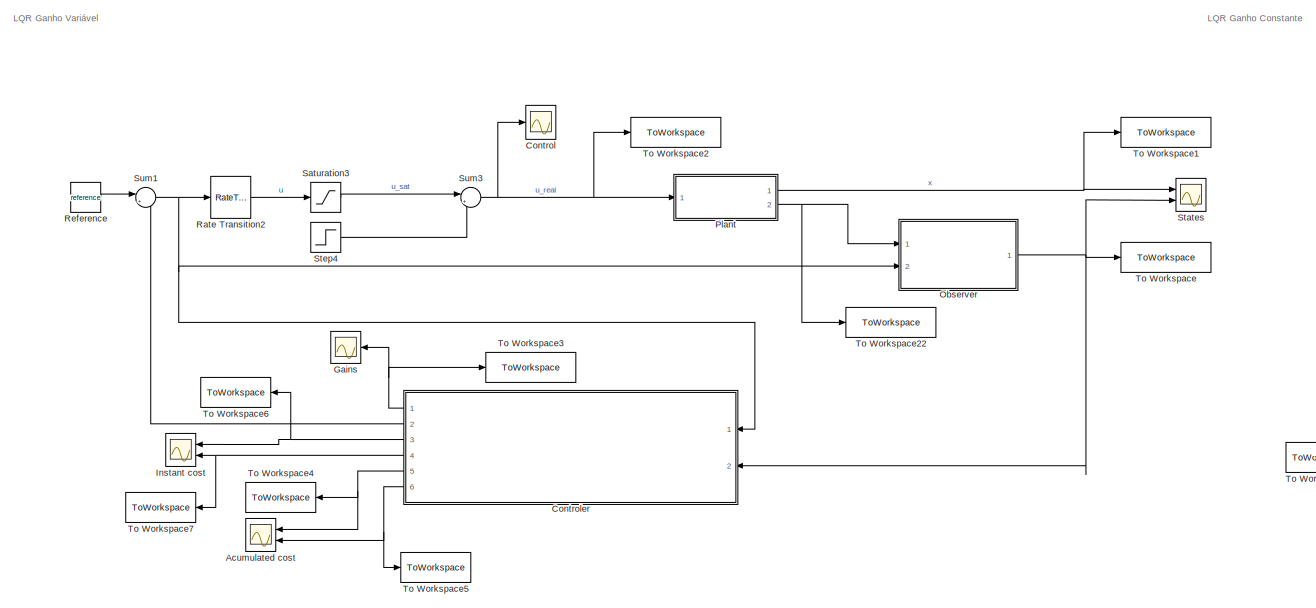
[diagram: root canvas - part 1/3, top left region]
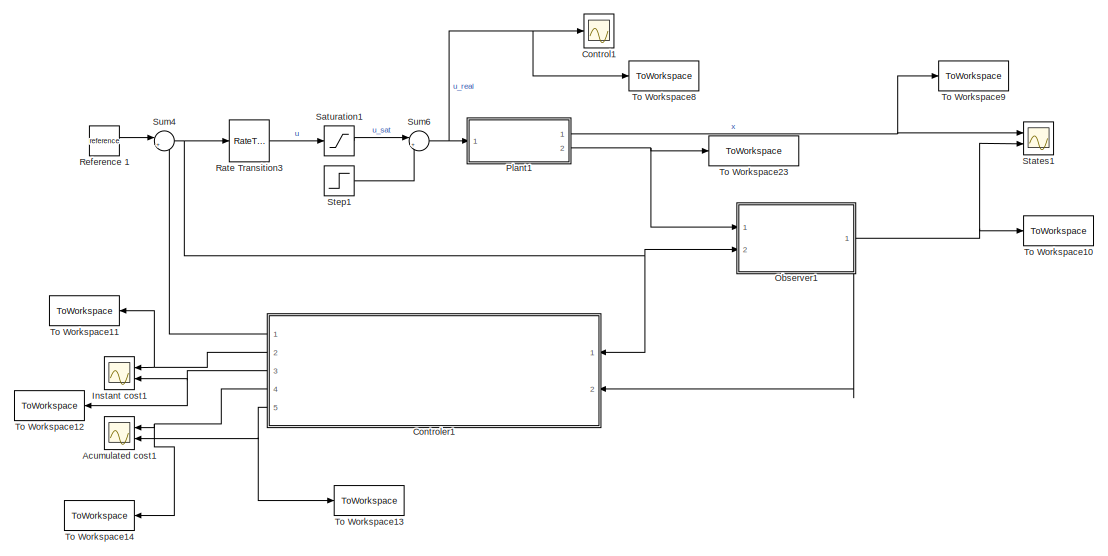
[diagram: root canvas - part 2/3, top right region]
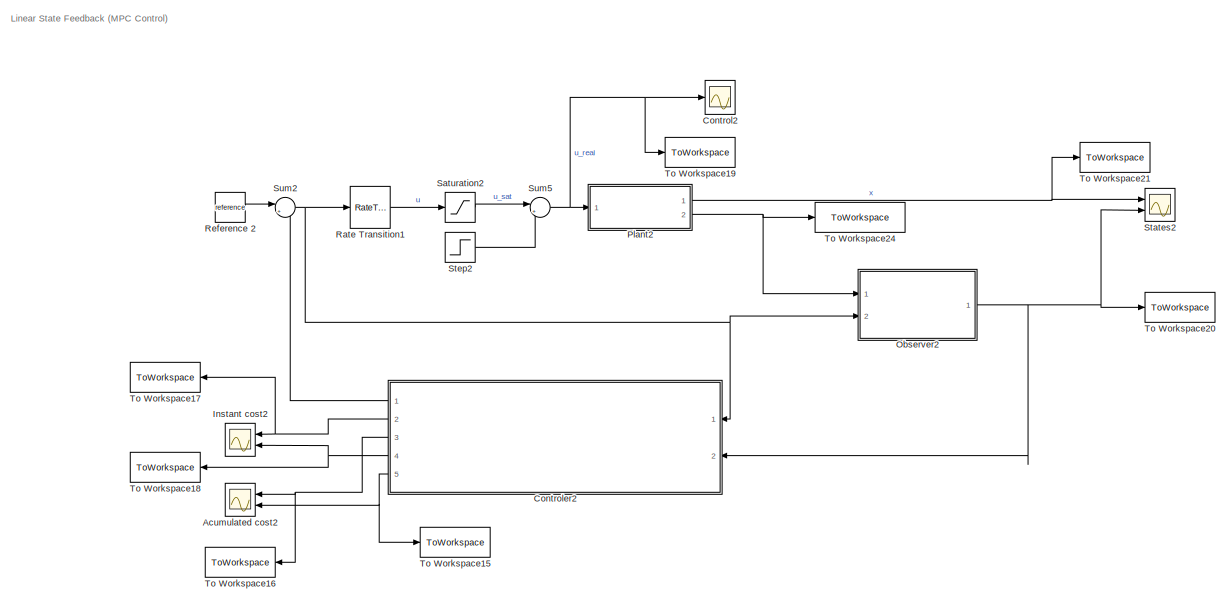
[diagram: root canvas - part 3/3, bottom left region]
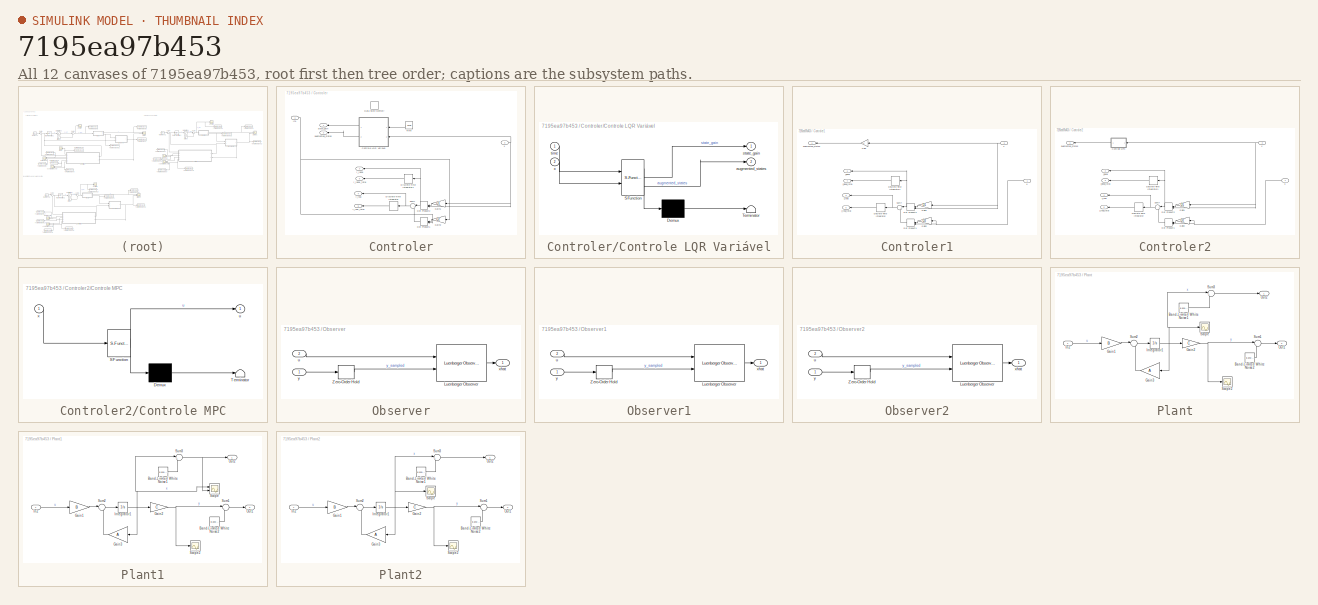
[diagram: thumbnail index - all 12 canvases of the model, root first then tree order]
MODEL slx_7195ea97b453
KIND model
CONFIG AbsTol = auto
CONFIG EnableMultiTasking = off
CONFIG FixedStep = h_plant
CONFIG MaxStep = auto
CONFIG MinStep = auto
CONFIG RelTol = 1e-3
CONFIG SampleTimeConstraint = Unconstrained
CONFIG SolverName = ode4
CONFIG StartTime = 0.0
CONFIG StopTime = 30
BLOCK [Scope] Acumulated cost
  Floating = off
  NumInputPorts = 2
  Ports = [2]
  ScopeSpecificationString = Simulink.scopes.TimeScopeBlockCfg('CurrentConfiguration', extmgr.ConfigurationSet(extmgr.Configuration('Core','General UI',true),extmgr.Configuration('Core','Source UI',true),extmgr.Configuration('Sources','WiredSimulink',true,'DataLoggingVariableName','ScopeData8'),extmgr.Configuration('Visuals','Time Domain',true,'SerializedDisplays',{struct('MinYLimReal','-1.77947','MaxYLimReal','16.0152','YLab...<+1411ch>
BLOCK [Scope] Acumulated cost1
  Floating = off
  NumInputPorts = 2
  Ports = [2]
  ScopeSpecificationString = Simulink.scopes.TimeScopeBlockCfg('CurrentConfiguration', extmgr.ConfigurationSet(extmgr.Configuration('Core','General UI',true),extmgr.Configuration('Core','Source UI',true),extmgr.Configuration('Sources','WiredSimulink',true,'DataLoggingVariableName','ScopeData1'),extmgr.Configuration('Visuals','Time Domain',true,'SerializedDisplays',{struct('MinYLimReal','-1.77638','MaxYLimReal','15.98739','YLa...<+1410ch>
BLOCK [Scope] Acumulated cost2
  Floating = off
  NumInputPorts = 2
  Ports = [2]
  ScopeSpecificationString = Simulink.scopes.TimeScopeBlockCfg('CurrentConfiguration', extmgr.ConfigurationSet(extmgr.Configuration('Core','General UI',true),extmgr.Configuration('Core','Source UI',true),extmgr.Configuration('Sources','WiredSimulink',true,'DataLoggingVariableName','ScopeData3'),extmgr.Configuration('Visuals','Time Domain',true,'SerializedDisplays',{struct('MinYLimReal','-1.77638','MaxYLimReal','15.98739','YLa...<+1410ch>
BLOCK [Scope] Control
  Floating = off
  NumInputPorts = 1
  Ports = [1]
  ScopeSpecificationString = Simulink.scopes.TimeScopeBlockCfg('CurrentConfiguration', extmgr.ConfigurationSet(extmgr.Configuration('Core','General UI',true),extmgr.Configuration('Core','Source UI',true),extmgr.Configuration('Sources','WiredSimulink',true,'DataLoggingVariableName','ScopeData9'),extmgr.Configuration('Visuals','Time Domain',true,'SerializedDisplays',{struct('MinYLimReal','-3.12291','MaxYLimReal','3.83204','YLab...<+1418ch>
BLOCK [Scope] Control1
  Floating = off
  NumInputPorts = 1
  Ports = [1]
  ScopeSpecificationString = Simulink.scopes.TimeScopeBlockCfg('CurrentConfiguration', extmgr.ConfigurationSet(extmgr.Configuration('Core','General UI',true),extmgr.Configuration('Core','Source UI',true),extmgr.Configuration('Sources','WiredSimulink',true,'DataLoggingVariableName','ScopeData2'),extmgr.Configuration('Visuals','Time Domain',true,'SerializedDisplays',{struct('MinYLimReal','-6.55545','MaxYLimReal','5.62541','YLab...<+1418ch>
BLOCK [Scope] Control2
  Floating = off
  NumInputPorts = 1
  Ports = [1]
  ScopeSpecificationString = Simulink.scopes.TimeScopeBlockCfg('CurrentConfiguration', extmgr.ConfigurationSet(extmgr.Configuration('Core','General UI',true),extmgr.Configuration('Core','Source UI',true),extmgr.Configuration('Sources','WiredSimulink',true,'DataLoggingVariableName','ScopeData6'),extmgr.Configuration('Visuals','Time Domain',true,'SerializedDisplays',{struct('MinYLimReal','-31.196','MaxYLimReal','38.2957','YLabe...<+1402ch>
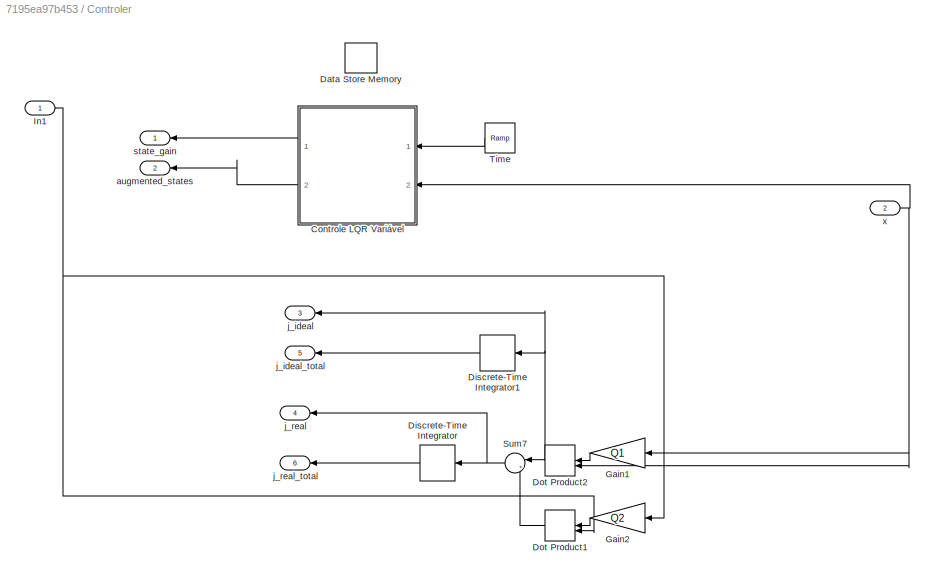
BLOCK [SubSystem] Controler
  Ports = [2, 6]
  RequestExecContextInheritance = off
BLOCK [SubSystem] Controler/Controle LQR Variável
  ErrorFcn = Stateflow.Translate.translate
  PermitHierarchicalResolution = ExplicitOnly
  Ports = [2, 2]
  RequestExecContextInheritance = off
  SFBlockType = MATLAB Function
  TreatAsAtomicUnit = on
BLOCK [Demux] Controler/Controle LQR Variável/ Demux 
  Outputs = 1
  Ports = [1, 1]
BLOCK [S-Function] Controler/Controle LQR Variável/ SFunction 
  EnableBusSupport = on
  FunctionName = sf_sfun
  Parameters = Gamma,N,Phi,Q0,Q1,Q2,h,n
  PortCounts = [2 3]
  Ports = [2, 3]
  SFcnIsStateOwnerBlock = off
  SFunctionDeploymentMode = off
  Tag = Stateflow S-Function 6
BLOCK [Terminator] Controler/Controle LQR Variável/ Terminator 
BLOCK [Outport] Controler/Controle LQR Variável/augmented_states
  Port = 2
BLOCK [Outport] Controler/Controle LQR Variável/state_gain
BLOCK [Inport] Controler/Controle LQR Variável/time
BLOCK [Inport] Controler/Controle LQR Variável/x
  Port = 2
BLOCK [DataStoreMemory] Controler/Data Store Memory
  DataStoreName = Fs
  InitialValue = zeros(1,n,1,N)
  OutDataTypeStr = double
  ReadBeforeWriteMsg = warning
  ShowAdditionalParam = off
  SignalType = real
  VectorParams1D = off
  WriteAfterReadMsg = warning
  WriteAfterWriteMsg = warning
BLOCK [DiscreteIntegrator] Controler/Discrete-Time Integrator
  ICPrevOutput = DiscIntNeverNeededParam
  ICPrevScaledInput = DiscIntNeverNeededParam
  InitialConditionSetting = Auto
  Ports = [1, 1]
  SampleTime = h
BLOCK [DiscreteIntegrator] Controler/Discrete-Time Integrator1
  ICPrevOutput = DiscIntNeverNeededParam
  ICPrevScaledInput = DiscIntNeverNeededParam
  InitialConditionSetting = Auto
  Ports = [1, 1]
  SampleTime = h
BLOCK [DotProduct] Controler/Dot Product1
  OutDataTypeStr = Inherit: Inherit via internal rule
BLOCK [DotProduct] Controler/Dot Product2
  OutDataTypeStr = Inherit: Inherit via internal rule
BLOCK [Gain] Controler/Gain1
  Gain = Q1
  Multiplication = Matrix(K*u)
BLOCK [Gain] Controler/Gain2
  Gain = Q2
  Multiplication = Matrix(K*u)
BLOCK [Inport] Controler/In1
BLOCK [Sum] Controler/Sum7
  Inputs = |++
  Ports = [2, 1]
BLOCK [Reference] Controler/Time  REF=simulink/Sources/Ramp
  Ports = [0, 1]
  SourceBlock = simulink/Sources/Ramp
  SourceProductBaseCode = SL
  SourceType = Ramp
BLOCK [Outport] Controler/augmented_states
  Port = 2
BLOCK [Outport] Controler/j_ideal
  Port = 3
BLOCK [Outport] Controler/j_ideal_total
  Port = 5
BLOCK [Outport] Controler/j_real
  Port = 4
BLOCK [Outport] Controler/j_real_total
  Port = 6
BLOCK [Outport] Controler/state_gain
BLOCK [Inport] Controler/x
  Port = 2
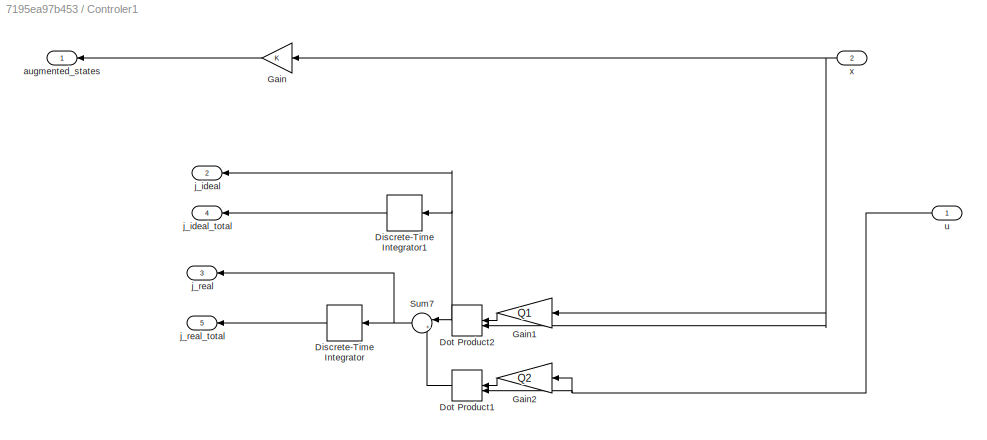
BLOCK [SubSystem] Controler1
  Ports = [2, 5]
  RequestExecContextInheritance = off
BLOCK [DiscreteIntegrator] Controler1/Discrete-Time Integrator
  ICPrevOutput = DiscIntNeverNeededParam
  ICPrevScaledInput = DiscIntNeverNeededParam
  InitialConditionSetting = Auto
  Ports = [1, 1]
  SampleTime = h
BLOCK [DiscreteIntegrator] Controler1/Discrete-Time Integrator1
  ICPrevOutput = DiscIntNeverNeededParam
  ICPrevScaledInput = DiscIntNeverNeededParam
  InitialConditionSetting = Auto
  Ports = [1, 1]
  SampleTime = h
BLOCK [DotProduct] Controler1/Dot Product1
  OutDataTypeStr = Inherit: Inherit via internal rule
BLOCK [DotProduct] Controler1/Dot Product2
  OutDataTypeStr = Inherit: Inherit via internal rule
BLOCK [Gain] Controler1/Gain
  Gain = K
  Multiplication = Matrix(K*u) (u vector)
BLOCK [Gain] Controler1/Gain1
  Gain = Q1
  Multiplication = Matrix(K*u)
BLOCK [Gain] Controler1/Gain2
  Gain = Q2
  Multiplication = Matrix(K*u)
BLOCK [Sum] Controler1/Sum7
  Inputs = |++
  Ports = [2, 1]
BLOCK [Outport] Controler1/augmented_states
BLOCK [Outport] Controler1/j_ideal
  Port = 2
BLOCK [Outport] Controler1/j_ideal_total
  Port = 4
BLOCK [Outport] Controler1/j_real
  Port = 3
BLOCK [Outport] Controler1/j_real_total
  Port = 5
BLOCK [Inport] Controler1/u
BLOCK [Inport] Controler1/x
  Port = 2
BLOCK [SubSystem] Controler2
  Ports = [2, 5]
  RequestExecContextInheritance = off
BLOCK [SubSystem] Controler2/Controle MPC
  ErrorFcn = Stateflow.Translate.translate
  PermitHierarchicalResolution = ExplicitOnly
  Ports = [1, 1]
  RequestExecContextInheritance = off
  SFBlockType = MATLAB Function
  TreatAsAtomicUnit = on
BLOCK [Demux] Controler2/Controle MPC/ Demux 
  Outputs = 1
  Ports = [1, 1]
BLOCK [S-Function] Controler2/Controle MPC/ SFunction 
  EnableBusSupport = on
  FunctionName = sf_sfun
  Parameters = Gamma,N,Phi,Q0,Q1,Q2,n
  PortCounts = [1 2]
  Ports = [1, 2]
  SFcnIsStateOwnerBlock = off
  SFunctionDeploymentMode = off
  Tag = Stateflow S-Function 1
BLOCK [Terminator] Controler2/Controle MPC/ Terminator 
BLOCK [Outport] Controler2/Controle MPC/u
BLOCK [Inport] Controler2/Controle MPC/x
BLOCK [DiscreteIntegrator] Controler2/Discrete-Time Integrator
  ICPrevOutput = DiscIntNeverNeededParam
  ICPrevScaledInput = DiscIntNeverNeededParam
  InitialConditionSetting = Auto
  Ports = [1, 1]
  SampleTime = h
BLOCK [DiscreteIntegrator] Controler2/Discrete-Time Integrator1
  ICPrevOutput = DiscIntNeverNeededParam
  ICPrevScaledInput = DiscIntNeverNeededParam
  InitialConditionSetting = Auto
  Ports = [1, 1]
  SampleTime = h
BLOCK [DotProduct] Controler2/Dot Product1
  OutDataTypeStr = Inherit: Inherit via internal rule
BLOCK [DotProduct] Controler2/Dot Product2
  OutDataTypeStr = Inherit: Inherit via internal rule
BLOCK [Gain] Controler2/Gain1
  Gain = Q1
  Multiplication = Matrix(K*u)
BLOCK [Gain] Controler2/Gain2
  Gain = Q2
  Multiplication = Matrix(K*u)
BLOCK [Sum] Controler2/Sum7
  Inputs = |++
  Ports = [2, 1]
BLOCK [Outport] Controler2/augmented_states
BLOCK [Outport] Controler2/j_ideal
  Port = 2
BLOCK [Outport] Controler2/j_ideal_total
  Port = 3
BLOCK [Outport] Controler2/j_real
  Port = 4
BLOCK [Outport] Controler2/j_real_total
  Port = 5
BLOCK [Inport] Controler2/u
BLOCK [Inport] Controler2/x
  Port = 2
BLOCK [Scope] Gains
  Floating = off
  NumInputPorts = 1
  Ports = [1]
  ScopeSpecificationString = Simulink.scopes.TimeScopeBlockCfg('CurrentConfiguration', extmgr.ConfigurationSet(extmgr.Configuration('Core','General UI',true),extmgr.Configuration('Core','Source UI',true),extmgr.Configuration('Sources','WiredSimulink',true,'DataLoggingVariableName','ScopeData10'),extmgr.Configuration('Visuals','Time Domain',true,'SerializedDisplays',{struct('MinYLimReal','0.53499','MaxYLimReal','1.35202','YLab...<+1432ch>
BLOCK [Scope] Instant cost
  Floating = off
  NumInputPorts = 2
  Ports = [2]
  ScopeSpecificationString = Simulink.scopes.TimeScopeBlockCfg('CurrentConfiguration', extmgr.ConfigurationSet(extmgr.Configuration('Core','General UI',true),extmgr.Configuration('Core','Source UI',true),extmgr.Configuration('Sources','WiredSimulink',true,'DataLoggingVariableName','ScopeData11'),extmgr.Configuration('Visuals','Time Domain',true,'SerializedDisplays',{struct('MinYLimReal','-0.83379','MaxYLimReal','7.50407','YLa...<+1454ch>
BLOCK [Scope] Instant cost1
  Floating = off
  NumInputPorts = 2
  Ports = [2]
  ScopeSpecificationString = Simulink.scopes.TimeScopeBlockCfg('CurrentConfiguration', extmgr.ConfigurationSet(extmgr.Configuration('Core','General UI',true),extmgr.Configuration('Core','Source UI',true),extmgr.Configuration('Sources','WiredSimulink',true,'DataLoggingVariableName','ScopeData4'),extmgr.Configuration('Visuals','Time Domain',true,'SerializedDisplays',{struct('MinYLimReal','-0.83712','MaxYLimReal','7.5341','YLabe...<+1436ch>
BLOCK [Scope] Instant cost2
  Floating = off
  NumInputPorts = 2
  Ports = [2]
  ScopeSpecificationString = Simulink.scopes.TimeScopeBlockCfg('CurrentConfiguration', extmgr.ConfigurationSet(extmgr.Configuration('Core','General UI',true),extmgr.Configuration('Core','Source UI',true),extmgr.Configuration('Sources','WiredSimulink',true,'DataLoggingVariableName','ScopeData7'),extmgr.Configuration('Visuals','Time Domain',true,'SerializedDisplays',{struct('MinYLimReal','-0.83712','MaxYLimReal','7.5341','YLabe...<+1436ch>
BLOCK [SubSystem] Observer
  Ports = [2, 1]
  RequestExecContextInheritance = off
BLOCK [Reference] Observer/Luenberger Observer  REF=eeLuenbergerObserver/Luenberger Observer
  Ports = [2, 1]
  SourceBlock = eeLuenbergerObserver/Luenberger Observer
  SourceProductBaseCode = PS
  SourceType = Luenberger Observer
BLOCK [ZeroOrderHold] Observer/Zero-Order Hold
  SampleTime = h
BLOCK [Inport] Observer/u
  Port = 2
BLOCK [Outport] Observer/xhat
BLOCK [Inport] Observer/y
BLOCK [SubSystem] Observer1
  Ports = [2, 1]
  RequestExecContextInheritance = off
BLOCK [Reference] Observer1/Luenberger Observer  REF=eeLuenbergerObserver/Luenberger Observer
  Ports = [2, 1]
  SourceBlock = eeLuenbergerObserver/Luenberger Observer
  SourceProductBaseCode = PS
  SourceType = Luenberger Observer
BLOCK [ZeroOrderHold] Observer1/Zero-Order Hold
  SampleTime = h
BLOCK [Inport] Observer1/u
  Port = 2
BLOCK [Outport] Observer1/xhat
BLOCK [Inport] Observer1/y
BLOCK [SubSystem] Observer2
  Ports = [2, 1]
  RequestExecContextInheritance = off
BLOCK [Reference] Observer2/Luenberger Observer  REF=eeLuenbergerObserver/Luenberger Observer
  Ports = [2, 1]
  SourceBlock = eeLuenbergerObserver/Luenberger Observer
  SourceProductBaseCode = PS
  SourceType = Luenberger Observer
BLOCK [ZeroOrderHold] Observer2/Zero-Order Hold
  SampleTime = h
BLOCK [Inport] Observer2/u
  Port = 2
BLOCK [Outport] Observer2/xhat
BLOCK [Inport] Observer2/y
BLOCK [SubSystem] Plant
  Ports = [1, 2]
  RequestExecContextInheritance = off
BLOCK [Reference] Plant/Band-Limited White Noise1  REF=simulink/Sources/Band-Limited
White Noise
  Ports = [0, 1]
  SourceBlock = simulink/Sources/Band-Limited\nWhite Noise
  SourceProductBaseCode = SL
  SourceType = Band-Limited White Noise.
BLOCK [Reference] Plant/Band-Limited White Noise2  REF=simulink/Sources/Band-Limited
White Noise
  Ports = [0, 1]
  SourceBlock = simulink/Sources/Band-Limited\nWhite Noise
  SourceProductBaseCode = SL
  SourceType = Band-Limited White Noise.
BLOCK [Gain] Plant/Gain1
  Gain = B
BLOCK [Gain] Plant/Gain2
  Gain = C
  Multiplication = Matrix(K*u) (u vector)
BLOCK [Gain] Plant/Gain3
  Gain = A
  Multiplication = Matrix(K*u) (u vector)
BLOCK [Inport] Plant/In2
  IconDisplay = Signal name
BLOCK [Integrator] Plant/Integrator1
  InitialCondition = x0
  Ports = [1, 1]
BLOCK [Outport] Plant/Out1
  IconDisplay = Signal name
  Port = 2
BLOCK [Outport] Plant/Out2
  IconDisplay = Signal name
BLOCK [Scope] Plant/Scope
  Floating = off
  NumInputPorts = 1
  Ports = [1]
  ScopeSpecificationString = Simulink.scopes.TimeScopeBlockCfg('CurrentConfiguration', extmgr.ConfigurationSet(extmgr.Configuration('Core','General UI',true),extmgr.Configuration('Core','Source UI',true),extmgr.Configuration('Sources','WiredSimulink',true,'DataLoggingVariableName','ScopeData4'),extmgr.Configuration('Visuals','Time Domain',true,'SerializedDisplays',{struct('MinYLimReal','-12.87437','MaxYLimReal','18.06874','YL...<+1403ch>
BLOCK [Scope] Plant/Scope2
  Floating = off
  NumInputPorts = 1
  Ports = [1]
  ScopeSpecificationString = Simulink.scopes.TimeScopeBlockCfg('CurrentConfiguration', extmgr.ConfigurationSet(extmgr.Configuration('Core','General UI',true),extmgr.Configuration('Core','Source UI',true),extmgr.Configuration('Sources','WiredSimulink',true,'DataLoggingVariableName','ScopeData6'),extmgr.Configuration('Visuals','Time Domain',true,'SerializedDisplays',{struct('MinYLimReal','-1.8718','MaxYLimReal','16.84624','YLab...<+1391ch>
BLOCK [Sum] Plant/Sum1
  Inputs = |++
  Ports = [2, 1]
BLOCK [Sum] Plant/Sum2
  Inputs = |++
  Ports = [2, 1]
BLOCK [Sum] Plant/Sum3
  Inputs = |++
  Ports = [2, 1]
BLOCK [SubSystem] Plant1
  Ports = [1, 2]
  RequestExecContextInheritance = off
BLOCK [Reference] Plant1/Band-Limited White Noise1  REF=simulink/Sources/Band-Limited
White Noise
  Ports = [0, 1]
  SourceBlock = simulink/Sources/Band-Limited\nWhite Noise
  SourceProductBaseCode = SL
  SourceType = Band-Limited White Noise.
BLOCK [Reference] Plant1/Band-Limited White Noise2  REF=simulink/Sources/Band-Limited
White Noise
  Ports = [0, 1]
  SourceBlock = simulink/Sources/Band-Limited\nWhite Noise
  SourceProductBaseCode = SL
  SourceType = Band-Limited White Noise.
BLOCK [Gain] Plant1/Gain1
  Gain = B
BLOCK [Gain] Plant1/Gain2
  Gain = C
  Multiplication = Matrix(K*u) (u vector)
BLOCK [Gain] Plant1/Gain3
  Gain = A
  Multiplication = Matrix(K*u) (u vector)
BLOCK [Inport] Plant1/In2
  IconDisplay = Signal name
BLOCK [Integrator] Plant1/Integrator1
  InitialCondition = x0
  Ports = [1, 1]
BLOCK [Outport] Plant1/Out1
  IconDisplay = Signal name
  Port = 2
BLOCK [Outport] Plant1/Out2
  IconDisplay = Signal name
BLOCK [Scope] Plant1/Scope
  Floating = off
  NumInputPorts = 2
  Ports = [2]
  ScopeSpecificationString = Simulink.scopes.TimeScopeBlockCfg('CurrentConfiguration', extmgr.ConfigurationSet(extmgr.Configuration('Core','General UI',true),extmgr.Configuration('Core','Source UI',true),extmgr.Configuration('Sources','WiredSimulink',true,'DataLoggingVariableName','ScopeData4'),extmgr.Configuration('Visuals','Time Domain',true,'SerializedDisplays',{struct('MinYLimReal','-4.39749','MaxYLimReal','4.18155','YLab...<+1440ch>
BLOCK [Scope] Plant1/Scope2
  Floating = off
  NumInputPorts = 1
  Ports = [1]
  ScopeSpecificationString = Simulink.scopes.TimeScopeBlockCfg('CurrentConfiguration', extmgr.ConfigurationSet(extmgr.Configuration('Core','General UI',true),extmgr.Configuration('Core','Source UI',true),extmgr.Configuration('Sources','WiredSimulink',true,'DataLoggingVariableName','ScopeData6'),extmgr.Configuration('Visuals','Time Domain',true,'SerializedDisplays',{struct('MinYLimReal','-1.74953','MaxYLimReal','1.3055','YLabe...<+1387ch>
BLOCK [Sum] Plant1/Sum1
  Inputs = |++
  Ports = [2, 1]
BLOCK [Sum] Plant1/Sum2
  Inputs = |++
  Ports = [2, 1]
BLOCK [Sum] Plant1/Sum3
  Inputs = |++
  Ports = [2, 1]
BLOCK [SubSystem] Plant2
  Ports = [1, 2]
  RequestExecContextInheritance = off
BLOCK [Reference] Plant2/Band-Limited White Noise1  REF=simulink/Sources/Band-Limited
White Noise
  Ports = [0, 1]
  SourceBlock = simulink/Sources/Band-Limited\nWhite Noise
  SourceProductBaseCode = SL
  SourceType = Band-Limited White Noise.
BLOCK [Reference] Plant2/Band-Limited White Noise2  REF=simulink/Sources/Band-Limited
White Noise
  Ports = [0, 1]
  SourceBlock = simulink/Sources/Band-Limited\nWhite Noise
  SourceProductBaseCode = SL
  SourceType = Band-Limited White Noise.
BLOCK [Gain] Plant2/Gain1
  Gain = B
BLOCK [Gain] Plant2/Gain2
  Gain = C
  Multiplication = Matrix(K*u) (u vector)
BLOCK [Gain] Plant2/Gain3
  Gain = A
  Multiplication = Matrix(K*u) (u vector)
BLOCK [Inport] Plant2/In2
  IconDisplay = Signal name
BLOCK [Integrator] Plant2/Integrator1
  InitialCondition = x0
  Ports = [1, 1]
BLOCK [Outport] Plant2/Out1
  IconDisplay = Signal name
  Port = 2
BLOCK [Outport] Plant2/Out2
  IconDisplay = Signal name
BLOCK [Scope] Plant2/Scope
  Floating = off
  NumInputPorts = 1
  Ports = [1]
  ScopeSpecificationString = Simulink.scopes.TimeScopeBlockCfg('CurrentConfiguration', extmgr.ConfigurationSet(extmgr.Configuration('Core','General UI',true),extmgr.Configuration('Core','Source UI',true),extmgr.Configuration('Sources','WiredSimulink',true,'DataLoggingVariableName','ScopeData4'),extmgr.Configuration('Visuals','Time Domain',true,'SerializedDisplays',{struct('MinYLimReal','-12.87437','MaxYLimReal','18.06874','YL...<+1403ch>
BLOCK [Scope] Plant2/Scope2
  Floating = off
  NumInputPorts = 1
  Ports = [1]
  ScopeSpecificationString = Simulink.scopes.TimeScopeBlockCfg('CurrentConfiguration', extmgr.ConfigurationSet(extmgr.Configuration('Core','General UI',true),extmgr.Configuration('Core','Source UI',true),extmgr.Configuration('Sources','WiredSimulink',true,'DataLoggingVariableName','ScopeData6'),extmgr.Configuration('Visuals','Time Domain',true,'SerializedDisplays',{struct('MinYLimReal','-1.00309','MaxYLimReal','1.22257','YLab...<+1389ch>
BLOCK [Sum] Plant2/Sum1
  Inputs = |++
  Ports = [2, 1]
BLOCK [Sum] Plant2/Sum2
  Inputs = |++
  Ports = [2, 1]
BLOCK [Sum] Plant2/Sum3
  Inputs = |++
  Ports = [2, 1]
BLOCK [RateTransition] Rate Transition1
  Integrity = off
  OutPortSampleTime = h_plant
  OutPortSampleTimeMultiple = 0.01
BLOCK [RateTransition] Rate Transition2
  Integrity = off
  OutPortSampleTime = h_plant
  OutPortSampleTimeMultiple = 0.01
BLOCK [RateTransition] Rate Transition3
  Integrity = off
  OutPortSampleTime = h_plant
  OutPortSampleTimeMultiple = 0.01
BLOCK [Constant] Reference
  SampleTime = h
  Value = reference
BLOCK [Constant] Reference 1
  SampleTime = h
  Value = reference
BLOCK [Constant] Reference 2
  SampleTime = h
  Value = reference
BLOCK [Saturate] Saturation1
  LowerLimit = sat_min
  UpperLimit = sat_max
BLOCK [Saturate] Saturation2
  LowerLimit = sat_min
  UpperLimit = sat_max
BLOCK [Saturate] Saturation3
  LowerLimit = sat_min
  UpperLimit = sat_max
BLOCK [Scope] States
  Floating = off
  NumInputPorts = 2
  Ports = [2]
  ScopeSpecificationString = Simulink.scopes.TimeScopeBlockCfg('CurrentConfiguration', extmgr.ConfigurationSet(extmgr.Configuration('Core','General UI',true),extmgr.Configuration('Core','Source UI',true),extmgr.Configuration('Sources','WiredSimulink',true,'DataLoggingVariableName','ScopeData12'),extmgr.Configuration('Visuals','Time Domain',true,'SerializedDisplays',{struct('MinYLimReal','-2.97453','MaxYLimReal','2.50669','YLa...<+1466ch>
BLOCK [Scope] States1
  Floating = off
  NumInputPorts = 2
  Ports = [2]
  ScopeSpecificationString = Simulink.scopes.TimeScopeBlockCfg('CurrentConfiguration', extmgr.ConfigurationSet(extmgr.Configuration('Core','General UI',true),extmgr.Configuration('Core','Source UI',true),extmgr.Configuration('Sources','WiredSimulink',true,'DataLoggingVariableName','ScopeData5'),extmgr.Configuration('Visuals','Time Domain',true,'SerializedDisplays',{struct('MinYLimReal','-2.97453','MaxYLimReal','2.50669','YLab...<+1467ch>
BLOCK [Scope] States2
  Floating = off
  NumInputPorts = 2
  Ports = [2]
  ScopeSpecificationString = Simulink.scopes.TimeScopeBlockCfg('CurrentConfiguration', extmgr.ConfigurationSet(extmgr.Configuration('Core','General UI',true),extmgr.Configuration('Core','Source UI',true),extmgr.Configuration('Sources','WiredSimulink',true,'DataLoggingVariableName','ScopeData13'),extmgr.Configuration('Visuals','Time Domain',true,'SerializedDisplays',{struct('MinYLimReal','-0.95226','MaxYLimReal','2.20805','YLa...<+1467ch>
BLOCK [Step] Step1
  After = wind_final_value
  Before = wind_initial_value
  SampleTime = h_plant
  Time = wind_steptime
BLOCK [Step] Step2
  After = wind_final_value
  Before = wind_initial_value
  SampleTime = h_plant
  Time = wind_steptime
BLOCK [Step] Step4
  After = wind_final_value
  Before = wind_initial_value
  SampleTime = h_plant
  Time = wind_steptime
BLOCK [Sum] Sum1
  Inputs = |+-
  Ports = [2, 1]
BLOCK [Sum] Sum2
  Inputs = |++
  Ports = [2, 1]
BLOCK [Sum] Sum3
  Inputs = |++
  Ports = [2, 1]
BLOCK [Sum] Sum4
  Inputs = |+-
  Ports = [2, 1]
BLOCK [Sum] Sum5
  Inputs = |++
  Ports = [2, 1]
BLOCK [Sum] Sum6
  Inputs = |++
  Ports = [2, 1]
BLOCK [ToWorkspace] To Workspace
  FixptAsFi = on
  MaxDataPoints = inf
  Ports = [1]
  SampleTime = -1
  SaveFormat = Timeseries
  VariableName = xhat
BLOCK [ToWorkspace] To Workspace1
  FixptAsFi = on
  MaxDataPoints = inf
  Ports = [1]
  SampleTime = -1
  SaveFormat = Timeseries
  VariableName = x
BLOCK [ToWorkspace] To Workspace10
  FixptAsFi = on
  MaxDataPoints = inf
  Ports = [1]
  SampleTime = -1
  SaveFormat = Timeseries
  VariableName = xhat1
BLOCK [ToWorkspace] To Workspace11
  FixptAsFi = on
  MaxDataPoints = inf
  Ports = [1]
  SampleTime = -1
  SaveFormat = Timeseries
  VariableName = j_ideal1
BLOCK [ToWorkspace] To Workspace12
  FixptAsFi = on
  MaxDataPoints = inf
  Ports = [1]
  SampleTime = -1
  SaveFormat = Timeseries
  VariableName = j_real1
BLOCK [ToWorkspace] To Workspace13
  FixptAsFi = on
  MaxDataPoints = inf
  Ports = [1]
  SampleTime = -1
  SaveFormat = Timeseries
  VariableName = j_real_total1
BLOCK [ToWorkspace] To Workspace14
  FixptAsFi = on
  MaxDataPoints = inf
  Ports = [1]
  SampleTime = -1
  SaveFormat = Timeseries
  VariableName = j_ideal_total1
BLOCK [ToWorkspace] To Workspace15
  FixptAsFi = on
  MaxDataPoints = inf
  Ports = [1]
  SampleTime = -1
  SaveFormat = Timeseries
  VariableName = j_real_total2
BLOCK [ToWorkspace] To Workspace16
  FixptAsFi = on
  MaxDataPoints = inf
  Ports = [1]
  SampleTime = -1
  SaveFormat = Timeseries
  VariableName = j_ideal_total2
BLOCK [ToWorkspace] To Workspace17
  FixptAsFi = on
  MaxDataPoints = inf
  Ports = [1]
  SampleTime = -1
  SaveFormat = Timeseries
  VariableName = j_ideal2
BLOCK [ToWorkspace] To Workspace18
  FixptAsFi = on
  MaxDataPoints = inf
  Ports = [1]
  SampleTime = -1
  SaveFormat = Timeseries
  VariableName = j_real2
BLOCK [ToWorkspace] To Workspace19
  FixptAsFi = on
  MaxDataPoints = inf
  Ports = [1]
  SampleTime = -1
  SaveFormat = Timeseries
  VariableName = u2
BLOCK [ToWorkspace] To Workspace2
  FixptAsFi = on
  MaxDataPoints = inf
  Ports = [1]
  SampleTime = -1
  SaveFormat = Timeseries
  VariableName = u
BLOCK [ToWorkspace] To Workspace20
  FixptAsFi = on
  MaxDataPoints = inf
  Ports = [1]
  SampleTime = -1
  SaveFormat = Timeseries
  VariableName = xhat2
BLOCK [ToWorkspace] To Workspace21
  FixptAsFi = on
  MaxDataPoints = inf
  Ports = [1]
  SampleTime = -1
  SaveFormat = Timeseries
  VariableName = x2
BLOCK [ToWorkspace] To Workspace22
  FixptAsFi = on
  MaxDataPoints = inf
  Ports = [1]
  SampleTime = -1
  SaveFormat = Timeseries
  VariableName = y
BLOCK [ToWorkspace] To Workspace23
  FixptAsFi = on
  MaxDataPoints = inf
  Ports = [1]
  SampleTime = -1
  SaveFormat = Timeseries
  VariableName = y1
BLOCK [ToWorkspace] To Workspace24
  FixptAsFi = on
  MaxDataPoints = inf
  Ports = [1]
  SampleTime = -1
  SaveFormat = Timeseries
  VariableName = y2
BLOCK [ToWorkspace] To Workspace3
  FixptAsFi = on
  MaxDataPoints = inf
  Ports = [1]
  SampleTime = -1
  SaveFormat = Timeseries
  VariableName = gains
BLOCK [ToWorkspace] To Workspace4
  FixptAsFi = on
  MaxDataPoints = inf
  Ports = [1]
  SampleTime = -1
  SaveFormat = Timeseries
  VariableName = j_ideal_total
BLOCK [ToWorkspace] To Workspace5
  FixptAsFi = on
  MaxDataPoints = inf
  Ports = [1]
  SampleTime = -1
  SaveFormat = Timeseries
  VariableName = j_real_total
BLOCK [ToWorkspace] To Workspace6
  FixptAsFi = on
  MaxDataPoints = inf
  Ports = [1]
  SampleTime = -1
  SaveFormat = Timeseries
  VariableName = j_ideal
BLOCK [ToWorkspace] To Workspace7
  FixptAsFi = on
  MaxDataPoints = inf
  Ports = [1]
  SampleTime = -1
  SaveFormat = Timeseries
  VariableName = j_real
BLOCK [ToWorkspace] To Workspace8
  FixptAsFi = on
  MaxDataPoints = inf
  Ports = [1]
  SampleTime = -1
  SaveFormat = Timeseries
  VariableName = u1
BLOCK [ToWorkspace] To Workspace9
  FixptAsFi = on
  MaxDataPoints = inf
  Ports = [1]
  SampleTime = -1
  SaveFormat = Timeseries
  VariableName = x1
ANNOTATION (root): LQR Ganho Constante
ANNOTATION (root): LQR Ganho Variável
ANNOTATION (root): Linear State Feedback (MPC Control)
LINE Controler/Controle LQR Variável:1 -> Controler/state_gain:1
LINE Controler/Controle LQR Variável:2 -> Controler/augmented_states:1
LINE Controler/Discrete-Time Integrator1:1 -> Controler/j_ideal_total:1
LINE Controler/Discrete-Time Integrator:1 -> Controler/j_real_total:1
LINE Controler/Dot Product1:1 -> Controler/Sum7:2
NET Controler/Dot Product2:1 -> Controler/Discrete-Time Integrator1:1, Controler/Sum7:1, Controler/j_ideal:1
LINE Controler/Gain1:1 -> Controler/Dot Product2:1
LINE Controler/Gain2:1 -> Controler/Dot Product1:1
NET Controler/In1:1 -> Controler/Dot Product1:2, Controler/Gain2:1
NET Controler/Sum7:1 -> Controler/Discrete-Time Integrator:1, Controler/j_real:1
LINE Controler/Time:1 -> Controler/Controle LQR Variável:1
NET Controler/x:1 -> Controler/Controle LQR Variável:2, Controler/Dot Product2:2, Controler/Gain1:1
LINE Controler1/Discrete-Time Integrator1:1 -> Controler1/j_ideal_total:1
LINE Controler1/Discrete-Time Integrator:1 -> Controler1/j_real_total:1
LINE Controler1/Dot Product1:1 -> Controler1/Sum7:2
NET Controler1/Dot Product2:1 -> Controler1/Discrete-Time Integrator1:1, Controler1/Sum7:1, Controler1/j_ideal:1
LINE Controler1/Gain1:1 -> Controler1/Dot Product2:1
LINE Controler1/Gain2:1 -> Controler1/Dot Product1:1
LINE Controler1/Gain:1 -> Controler1/augmented_states:1
NET Controler1/Sum7:1 -> Controler1/Discrete-Time Integrator:1, Controler1/j_real:1
NET Controler1/u:1 -> Controler1/Dot Product1:2, Controler1/Gain2:1
NET Controler1/x:1 -> Controler1/Dot Product2:2, Controler1/Gain1:1, Controler1/Gain:1
LINE Controler1:1 -> Sum4:2
NET Controler1:2 -> Instant cost1:1, To Workspace11:1
NET Controler1:3 -> Instant cost1:2, To Workspace12:1
NET Controler1:4 -> Acumulated cost1:1, To Workspace14:1
NET Controler1:5 -> Acumulated cost1:2, To Workspace13:1
LINE Controler2/Controle MPC:1 -> Controler2/augmented_states:1
LINE Controler2/Discrete-Time Integrator1:1 -> Controler2/j_ideal_total:1
LINE Controler2/Discrete-Time Integrator:1 -> Controler2/j_real_total:1
LINE Controler2/Dot Product1:1 -> Controler2/Sum7:2
NET Controler2/Dot Product2:1 -> Controler2/Discrete-Time Integrator1:1, Controler2/Sum7:1, Controler2/j_ideal:1
LINE Controler2/Gain1:1 -> Controler2/Dot Product2:1
LINE Controler2/Gain2:1 -> Controler2/Dot Product1:1
NET Controler2/Sum7:1 -> Controler2/Discrete-Time Integrator:1, Controler2/j_real:1
NET Controler2/u:1 -> Controler2/Dot Product1:2, Controler2/Gain2:1
NET Controler2/x:1 -> Controler2/Controle MPC:1, Controler2/Dot Product2:2, Controler2/Gain1:1
LINE Controler2:1 -> Sum2:2
NET Controler2:2 -> Instant cost2:1, To Workspace17:1
NET Controler2:3 -> Acumulated cost2:1, To Workspace16:1
NET Controler2:4 -> Instant cost2:2, To Workspace18:1
NET Controler2:5 -> Acumulated cost2:2, To Workspace15:1
NET Controler:1 -> Gains:1, To Workspace3:1
LINE Controler:2 -> Sum1:2
NET Controler:3 -> Instant cost:1, To Workspace6:1
NET Controler:4 -> Instant cost:2, To Workspace7:1
NET Controler:5 -> Acumulated cost:1, To Workspace4:1
NET Controler:6 -> Acumulated cost:2, To Workspace5:1
LINE Observer/Luenberger Observer:1 -> Observer/xhat:1
LINE Observer/Zero-Order Hold:1 -> Observer/Luenberger Observer:2
LINE Observer/u:1 -> Observer/Luenberger Observer:1
LINE Observer/y:1 -> Observer/Zero-Order Hold:1
LINE Observer1/Luenberger Observer:1 -> Observer1/xhat:1
LINE Observer1/Zero-Order Hold:1 -> Observer1/Luenberger Observer:2
LINE Observer1/u:1 -> Observer1/Luenberger Observer:1
LINE Observer1/y:1 -> Observer1/Zero-Order Hold:1
NET Observer1:1 -> Controler1:2, States1:2, To Workspace10:1
LINE Observer2/Luenberger Observer:1 -> Observer2/xhat:1
LINE Observer2/Zero-Order Hold:1 -> Observer2/Luenberger Observer:2
LINE Observer2/u:1 -> Observer2/Luenberger Observer:1
LINE Observer2/y:1 -> Observer2/Zero-Order Hold:1
NET Observer2:1 -> Controler2:2, States2:2, To Workspace20:1
NET Observer:1 -> Controler:2, States:2, To Workspace:1
LINE Plant/Band-Limited White Noise1:1 -> Plant/Sum3:2
LINE Plant/Band-Limited White Noise2:1 -> Plant/Sum1:2
LINE Plant/Gain1:1 -> Plant/Sum2:1
NET Plant/Gain2:1 -> Plant/Scope2:1, Plant/Sum1:1
LINE Plant/Gain3:1 -> Plant/Sum2:2
LINE Plant/In2:1 -> Plant/Gain1:1
NET Plant/Integrator1:1 -> Plant/Gain2:1, Plant/Gain3:1, Plant/Scope:1, Plant/Sum3:1
LINE Plant/Sum1:1 -> Plant/Out1:1
LINE Plant/Sum2:1 -> Plant/Integrator1:1
LINE Plant/Sum3:1 -> Plant/Out2:1
LINE Plant1/Band-Limited White Noise1:1 -> Plant1/Sum3:2
LINE Plant1/Band-Limited White Noise2:1 -> Plant1/Sum1:2
LINE Plant1/Gain1:1 -> Plant1/Sum2:1
NET Plant1/Gain2:1 -> Plant1/Scope2:1, Plant1/Sum1:1
LINE Plant1/Gain3:1 -> Plant1/Sum2:2
LINE Plant1/In2:1 -> Plant1/Gain1:1
NET Plant1/Integrator1:1 -> Plant1/Gain2:1, Plant1/Gain3:1, Plant1/Scope:1, Plant1/Sum3:1
LINE Plant1/Sum1:1 -> Plant1/Out1:1
LINE Plant1/Sum2:1 -> Plant1/Integrator1:1
NET Plant1/Sum3:1 -> Plant1/Out2:1, Plant1/Scope:2
NET Plant1:1 -> States1:1, To Workspace9:1
NET Plant1:2 -> Observer1:1, To Workspace23:1
LINE Plant2/Band-Limited White Noise1:1 -> Plant2/Sum3:2
LINE Plant2/Band-Limited White Noise2:1 -> Plant2/Sum1:2
LINE Plant2/Gain1:1 -> Plant2/Sum2:1
NET Plant2/Gain2:1 -> Plant2/Scope2:1, Plant2/Sum1:1
LINE Plant2/Gain3:1 -> Plant2/Sum2:2
LINE Plant2/In2:1 -> Plant2/Gain1:1
NET Plant2/Integrator1:1 -> Plant2/Gain2:1, Plant2/Gain3:1, Plant2/Scope:1, Plant2/Sum3:1
LINE Plant2/Sum1:1 -> Plant2/Out1:1
LINE Plant2/Sum2:1 -> Plant2/Integrator1:1
LINE Plant2/Sum3:1 -> Plant2/Out2:1
NET Plant2:1 -> States2:1, To Workspace21:1
NET Plant2:2 -> Observer2:1, To Workspace24:1
NET Plant:1 -> States:1, To Workspace1:1
NET Plant:2 -> Observer:1, To Workspace22:1
LINE Rate Transition1:1 -> Saturation2:1
LINE Rate Transition2:1 -> Saturation3:1
LINE Rate Transition3:1 -> Saturation1:1
LINE Reference 1:1 -> Sum4:1
LINE Reference 2:1 -> Sum2:1
LINE Reference:1 -> Sum1:1
LINE Saturation1:1 -> Sum6:1
LINE Saturation2:1 -> Sum5:1
LINE Saturation3:1 -> Sum3:1
LINE Step1:1 -> Sum6:2
LINE Step2:1 -> Sum5:2
LINE Step4:1 -> Sum3:2
NET Sum1:1 -> Controler:1, Observer:2, Rate Transition2:1
NET Sum2:1 -> Controler2:1, Observer2:2, Rate Transition1:1
NET Sum3:1 -> Control:1, Plant:1, To Workspace2:1
NET Sum4:1 -> Controler1:1, Observer1:2, Rate Transition3:1
NET Sum5:1 -> Control2:1, Plant2:1, To Workspace19:1
NET Sum6:1 -> Control1:1, Plant1:1, To Workspace8:1
note: NET lines group one-source signal fan-out (src -> all destinations, sorted); 1:1 wires keep LINE
CHART Controler2/Controle MPC states=1 transitions=1
  STATE_LABEL 'eML_blk_kernel()'
  STATE_LABEL 'SCRIPT:\nfunction u  = mpc(Q1,Q2,Q0,n,Phi,Gamma,x,N)\n%#codegen\n\ntStart = tic;\n\ncoder.extrinsic(\'quadprog\');\n\nU = zeros(N,1);\nGain = zeros(2,1);\nfval = 0;\nz = zeros(N,1);\n\nM0 = [Phi];\ncoder.varsize("Mu");\nMu = [Gamma, zeros(size(Gamma,1), N-1)];\nMu_aux = Mu;\nQtil =  kron(eye((N-1)*(n-1)), Q1);\nRbar = kron(eye(N*size(Gamma,2)), Q2);\nQbar = blkdiag(Qtil, Q0);\nfor i = 1:N-1\n    M0 = [M0; Phi^(i+1)];\nen...<+286ch>'
CHART Controler/Controle LQR Variável states=1 transitions=1
  STATE_LABEL 'eML_blk_kernel()'
  STATE_LABEL "SCRIPT:\nfunction [state_gain, augmented_states]  = LQR(time, x, h, n, N, Q0, Q1, Phi, Gamma, Q2)\n    global Fs; %datastores\n    idx = 1 + mod(floor(time/h),N);\n    if (idx == 1)\n        S = zeros(n,n,1,N+1);\n        S(:,:,1,N+1) = Q0;\n        for j=(N):-1:1\n            first_val = Q1;\n            second_val = (Phi' * S(:,:,1,j+1) * Phi);\n            third_val = (Phi' * S(:,:,1,j+1) * Gamma)*(((Gam...<+311ch>"
CHART  states=0 transitions=0
CHART  states=0 transitions=0
